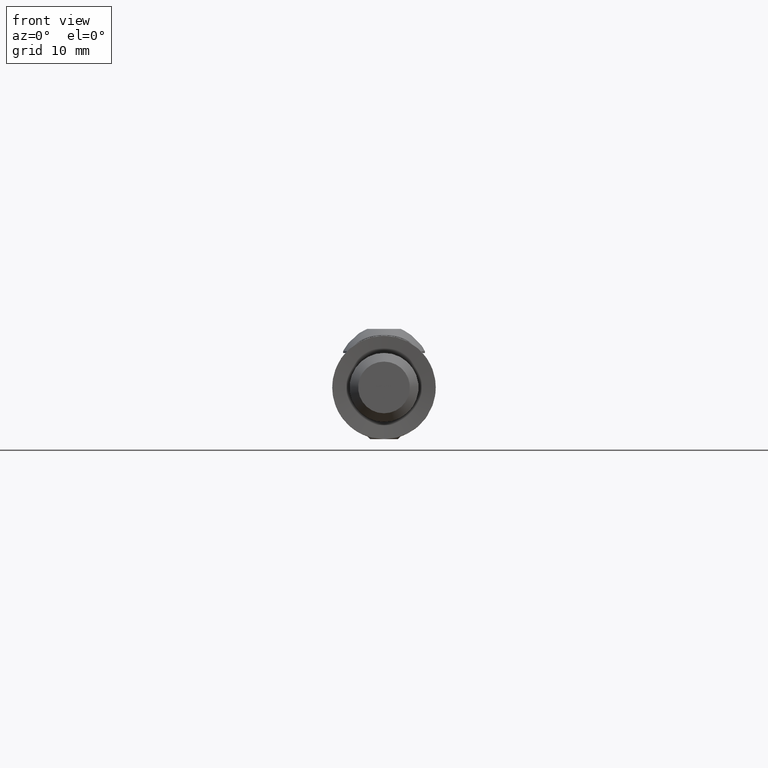
[diagram: clean part render]
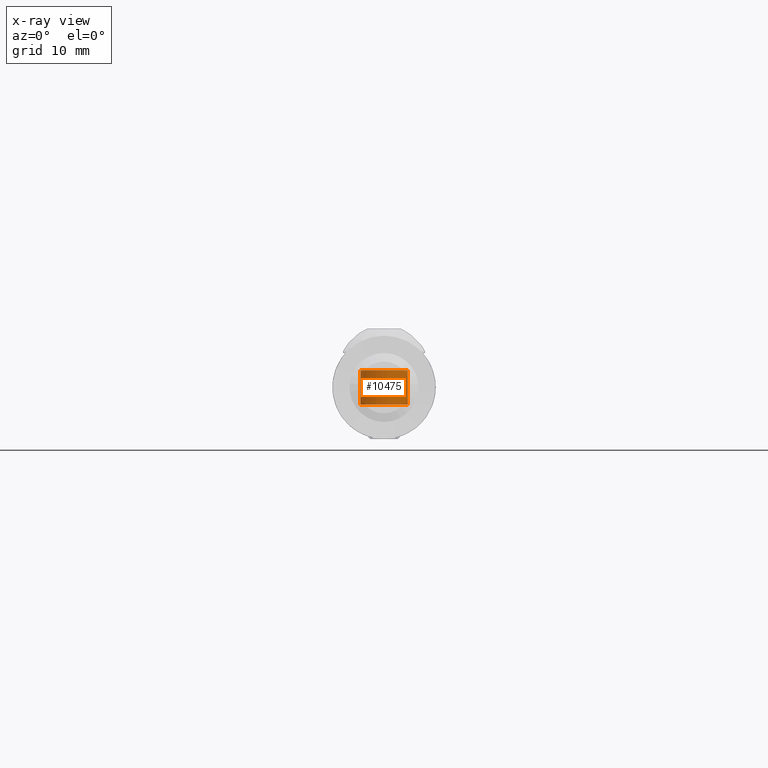
[diagram: x-ray — body ghosted, one internal face saturated and labeled with its STEP entity id]
A machine part, front view, then the same camera in x-ray: the body is ghosted and one INTERNAL B-rep face — a face not visible from any outside direction — is saturated and labeled: STEP entity #10475.
In plain terms, the highlighted cylindrical surface (bore or boss wall) has radius 2.75 mm, axis along (0, 0, 1).
Its self-contained STEP definition (entity closure, byte-faithful):
#69 = CARTESIAN_POINT ( 'NONE',  ( 0.000000000000000000, 5.000000000000004441, 2.000000000000000000 ) ) ;
#70 = CIRCLE ( 'NONE', #8758, 2.750000000000000000 ) ;
#1099 = EDGE_CURVE ( 'NONE', #8558, #8558, #6668, .T. ) ;
#3414 = ORIENTED_EDGE ( 'NONE', *, *, #5354, .T. ) ;
#5354 = EDGE_CURVE ( 'NONE', #5537, #5537, #70, .T. ) ;
#5537 = VERTEX_POINT ( 'NONE', #12192 ) ;
#6668 = CIRCLE ( 'NONE', #11564, 2.750000000000000000 ) ;
#6777 = DIRECTION ( 'NONE',  ( 1.000000000000000000, 0.000000000000000000, 0.000000000000000000 ) ) ;
#7928 = CARTESIAN_POINT ( 'NONE',  ( 2.750000000000000000, 5.000000000000004441, 2.000000000000000000 ) ) ;
#8558 = VERTEX_POINT ( 'NONE', #7928 ) ;
#8758 = AXIS2_PLACEMENT_3D ( 'NONE', #17657, #13146, #8850 ) ;
#8850 = DIRECTION ( 'NONE',  ( -1.000000000000000000, 0.000000000000000000, 0.000000000000000000 ) ) ;
#8974 = EDGE_LOOP ( 'NONE', ( #3414 ) ) ;
#9638 = AXIS2_PLACEMENT_3D ( 'NONE', #18584, #14191, #6777 ) ;
#10441 = DIRECTION ( 'NONE',  ( 0.000000000000000000, 0.000000000000000000, 1.000000000000000000 ) ) ;
#10475 = ADVANCED_FACE ( 'NONE', ( #11203, #14179 ), #16625, .F. ) ;
#11203 = FACE_OUTER_BOUND ( 'NONE', #8974, .T. ) ;
#11564 = AXIS2_PLACEMENT_3D ( 'NONE', #69, #10441, #16350 ) ;
#12192 = CARTESIAN_POINT ( 'NONE',  ( -2.750000000000000000, 5.000000000000004441, -2.000000000000000000 ) ) ;
#13146 = DIRECTION ( 'NONE',  ( 0.000000000000000000, 0.000000000000000000, -1.000000000000000000 ) ) ;
#14179 = FACE_OUTER_BOUND ( 'NONE', #15614, .T. ) ;
#14191 = DIRECTION ( 'NONE',  ( -0.000000000000000000, -0.000000000000000000, 1.000000000000000000 ) ) ;
#15614 = EDGE_LOOP ( 'NONE', ( #18899 ) ) ;
#16350 = DIRECTION ( 'NONE',  ( 1.000000000000000000, 0.000000000000000000, 0.000000000000000000 ) ) ;
#16625 = CYLINDRICAL_SURFACE ( 'NONE', #9638, 2.750000000000000000 ) ;
#17657 = CARTESIAN_POINT ( 'NONE',  ( 0.000000000000000000, 5.000000000000004441, -2.000000000000000000 ) ) ;
#18584 = CARTESIAN_POINT ( 'NONE',  ( 0.000000000000000000, 5.000000000000004441, -6.000000000000000000 ) ) ;
#18899 = ORIENTED_EDGE ( 'NONE', *, *, #1099, .T. ) ;